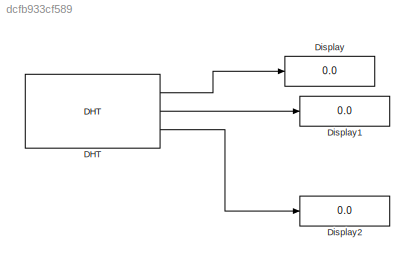
MODEL slx_dcfb933cf589
KIND model
CONFIG AbsTol = auto
CONFIG EnableMultiTasking = on
CONFIG FixedStep = auto
CONFIG MaxStep = auto
CONFIG MinStep = auto
CONFIG RelTol = 1e-3
CONFIG SampleTimeConstraint = Unconstrained
CONFIG Solver = FixedStepAuto
CONFIG SolverName = FixedStepAuto
CONFIG StartTime = 0.0
CONFIG StopTime = inf
BLOCK [Reference] DHT  REF=Arduino_Additional_Lib/DHT
  Ports = [0, 3]
  SourceBlock = Arduino_Additional_Lib/DHT
  SourceType = Arduino DHT Sensor
BLOCK [Display] Display
  Decimation = 1
  Ports = [1]
BLOCK [Display] Display1
  Decimation = 1
  Ports = [1]
BLOCK [Display] Display2
  Decimation = 1
  Ports = [1]
LINE DHT:1 -> Display:1
LINE DHT:2 -> Display1:1
LINE DHT:3 -> Display2:1
